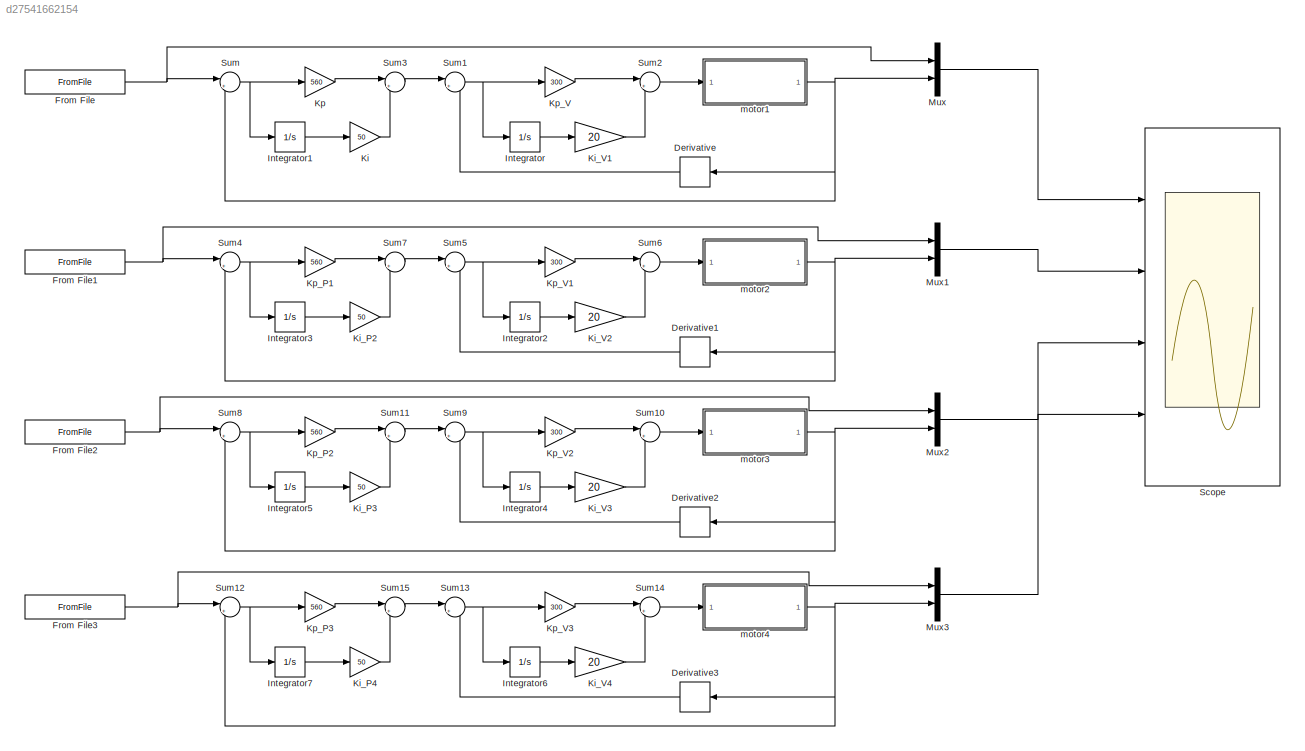
MODEL slx_d27541662154
KIND model
CONFIG AbsTol = auto
CONFIG EnableMultiTasking = off
CONFIG FixedStep = 0.02
CONFIG MaxStep = auto
CONFIG MinStep = auto
CONFIG RelTol = 1e-3
CONFIG SampleTimeConstraint = Unconstrained
CONFIG Solver = ode5
CONFIG SolverName = ode5
CONFIG StartTime = 0.0
CONFIG StopTime = 16.2433
BLOCK [Derivative] Derivative
BLOCK [Derivative] Derivative1
BLOCK [Derivative] Derivative2
BLOCK [Derivative] Derivative3
BLOCK [FromFile] From File
  FileName = theta1set.mat
BLOCK [FromFile] From File1
  FileName = theta2set.mat
BLOCK [FromFile] From File2
  FileName = d3set.mat
BLOCK [FromFile] From File3
  FileName = theta4set.mat
BLOCK [Integrator] Integrator
  Ports = [1, 1]
BLOCK [Integrator] Integrator1
  Ports = [1, 1]
BLOCK [Integrator] Integrator2
  Ports = [1, 1]
BLOCK [Integrator] Integrator3
  Ports = [1, 1]
BLOCK [Integrator] Integrator4
  Ports = [1, 1]
BLOCK [Integrator] Integrator5
  Ports = [1, 1]
BLOCK [Integrator] Integrator6
  Ports = [1, 1]
BLOCK [Integrator] Integrator7
  Ports = [1, 1]
BLOCK [Gain] Ki
  Gain = 50
  OutDataTypeStr = Inherit: Inherit via internal rule
  ParamDataTypeStr = Inherit: Inherit via internal rule
  SaturateOnIntegerOverflow = off
BLOCK [Gain] Ki_P2
  Gain = 50
  OutDataTypeStr = Inherit: Inherit via internal rule
  ParamDataTypeStr = Inherit: Inherit via internal rule
  SaturateOnIntegerOverflow = off
BLOCK [Gain] Ki_P3
  Gain = 50
  OutDataTypeStr = Inherit: Inherit via internal rule
  ParamDataTypeStr = Inherit: Inherit via internal rule
  SaturateOnIntegerOverflow = off
BLOCK [Gain] Ki_P4
  Gain = 50
  OutDataTypeStr = Inherit: Inherit via internal rule
  ParamDataTypeStr = Inherit: Inherit via internal rule
  SaturateOnIntegerOverflow = off
BLOCK [Gain] Ki_V1
  Gain = 20
  OutDataTypeStr = Inherit: Inherit via internal rule
  ParamDataTypeStr = Inherit: Inherit via internal rule
  SaturateOnIntegerOverflow = off
BLOCK [Gain] Ki_V2
  Gain = 20
  OutDataTypeStr = Inherit: Inherit via internal rule
  ParamDataTypeStr = Inherit: Inherit via internal rule
  SaturateOnIntegerOverflow = off
BLOCK [Gain] Ki_V3
  Gain = 20
  OutDataTypeStr = Inherit: Inherit via internal rule
  ParamDataTypeStr = Inherit: Inherit via internal rule
  SaturateOnIntegerOverflow = off
BLOCK [Gain] Ki_V4
  Gain = 20
  OutDataTypeStr = Inherit: Inherit via internal rule
  ParamDataTypeStr = Inherit: Inherit via internal rule
  SaturateOnIntegerOverflow = off
BLOCK [Gain] Kp
  Gain = 560
  OutDataTypeStr = Inherit: Inherit via internal rule
  ParamDataTypeStr = Inherit: Inherit via internal rule
  SaturateOnIntegerOverflow = off
BLOCK [Gain] Kp_P1
  Gain = 560
  OutDataTypeStr = Inherit: Inherit via internal rule
  ParamDataTypeStr = Inherit: Inherit via internal rule
  SaturateOnIntegerOverflow = off
BLOCK [Gain] Kp_P2
  Gain = 560
  OutDataTypeStr = Inherit: Inherit via internal rule
  ParamDataTypeStr = Inherit: Inherit via internal rule
  SaturateOnIntegerOverflow = off
BLOCK [Gain] Kp_P3
  Gain = 560
  OutDataTypeStr = Inherit: Inherit via internal rule
  ParamDataTypeStr = Inherit: Inherit via internal rule
  SaturateOnIntegerOverflow = off
BLOCK [Gain] Kp_V
  Gain = 300
  OutDataTypeStr = Inherit: Inherit via internal rule
  ParamDataTypeStr = Inherit: Inherit via internal rule
  SaturateOnIntegerOverflow = off
BLOCK [Gain] Kp_V1
  Gain = 300
  OutDataTypeStr = Inherit: Inherit via internal rule
  ParamDataTypeStr = Inherit: Inherit via internal rule
  SaturateOnIntegerOverflow = off
BLOCK [Gain] Kp_V2
  Gain = 300
  OutDataTypeStr = Inherit: Inherit via internal rule
  ParamDataTypeStr = Inherit: Inherit via internal rule
  SaturateOnIntegerOverflow = off
BLOCK [Gain] Kp_V3
  Gain = 300
  OutDataTypeStr = Inherit: Inherit via internal rule
  ParamDataTypeStr = Inherit: Inherit via internal rule
  SaturateOnIntegerOverflow = off
BLOCK [Mux] Mux
  DisplayOption = bar
  Inputs = 2
  Ports = [2, 1]
BLOCK [Mux] Mux1
  DisplayOption = bar
  Inputs = 2
  Ports = [2, 1]
BLOCK [Mux] Mux2
  DisplayOption = bar
  Inputs = 2
  Ports = [2, 1]
BLOCK [Mux] Mux3
  DisplayOption = bar
  Inputs = 2
  Ports = [2, 1]
BLOCK [Scope] Scope
  NumInputPorts = 4
  Ports = [4]
  ScopeSpecificationString = Simulink.scopes.TimeScopeBlockCfg('CurrentConfiguration', extmgr.ConfigurationSet(extmgr.Configuration('Core','General UI',true,'FigureColor',[1 1 1]),extmgr.Configuration('Core','Source UI',true),extmgr.Configuration('Sources','WiredSimulink',true,'DataLoggingVariableName','ScopeData1'),extmgr.Configuration('Visuals','Time Domain',true,'SerializedDisplays',{struct('MinYLimReal','-104.09392','MaxY...<+4483ch>
BLOCK [Sum] Sum
  IconShape = round
  InputSameDT = off
  Inputs = |+-
  OutDataTypeStr = Inherit: Inherit via internal rule
  Ports = [2, 1]
  SaturateOnIntegerOverflow = off
BLOCK [Sum] Sum1
  IconShape = round
  InputSameDT = off
  Inputs = |+-
  OutDataTypeStr = Inherit: Inherit via internal rule
  Ports = [2, 1]
  SaturateOnIntegerOverflow = off
BLOCK [Sum] Sum10
  IconShape = round
  InputSameDT = off
  Inputs = |++
  OutDataTypeStr = Inherit: Inherit via internal rule
  Ports = [2, 1]
  SaturateOnIntegerOverflow = off
BLOCK [Sum] Sum11
  IconShape = round
  InputSameDT = off
  Inputs = |++
  OutDataTypeStr = Inherit: Inherit via internal rule
  Ports = [2, 1]
  SaturateOnIntegerOverflow = off
BLOCK [Sum] Sum12
  IconShape = round
  InputSameDT = off
  Inputs = |+-
  OutDataTypeStr = Inherit: Inherit via internal rule
  Ports = [2, 1]
  SaturateOnIntegerOverflow = off
BLOCK [Sum] Sum13
  IconShape = round
  InputSameDT = off
  Inputs = |+-
  OutDataTypeStr = Inherit: Inherit via internal rule
  Ports = [2, 1]
  SaturateOnIntegerOverflow = off
BLOCK [Sum] Sum14
  IconShape = round
  InputSameDT = off
  Inputs = |++
  OutDataTypeStr = Inherit: Inherit via internal rule
  Ports = [2, 1]
  SaturateOnIntegerOverflow = off
BLOCK [Sum] Sum15
  IconShape = round
  InputSameDT = off
  Inputs = |++
  OutDataTypeStr = Inherit: Inherit via internal rule
  Ports = [2, 1]
  SaturateOnIntegerOverflow = off
BLOCK [Sum] Sum2
  IconShape = round
  InputSameDT = off
  Inputs = |++
  OutDataTypeStr = Inherit: Inherit via internal rule
  Ports = [2, 1]
  SaturateOnIntegerOverflow = off
BLOCK [Sum] Sum3
  IconShape = round
  InputSameDT = off
  Inputs = |++
  OutDataTypeStr = Inherit: Inherit via internal rule
  Ports = [2, 1]
  SaturateOnIntegerOverflow = off
BLOCK [Sum] Sum4
  IconShape = round
  InputSameDT = off
  Inputs = |+-
  OutDataTypeStr = Inherit: Inherit via internal rule
  Ports = [2, 1]
  SaturateOnIntegerOverflow = off
BLOCK [Sum] Sum5
  IconShape = round
  InputSameDT = off
  Inputs = |+-
  OutDataTypeStr = Inherit: Inherit via internal rule
  Ports = [2, 1]
  SaturateOnIntegerOverflow = off
BLOCK [Sum] Sum6
  IconShape = round
  InputSameDT = off
  Inputs = |++
  OutDataTypeStr = Inherit: Inherit via internal rule
  Ports = [2, 1]
  SaturateOnIntegerOverflow = off
BLOCK [Sum] Sum7
  IconShape = round
  InputSameDT = off
  Inputs = |++
  OutDataTypeStr = Inherit: Inherit via internal rule
  Ports = [2, 1]
  SaturateOnIntegerOverflow = off
BLOCK [Sum] Sum8
  IconShape = round
  InputSameDT = off
  Inputs = |+-
  OutDataTypeStr = Inherit: Inherit via internal rule
  Ports = [2, 1]
  SaturateOnIntegerOverflow = off
BLOCK [Sum] Sum9
  IconShape = round
  InputSameDT = off
  Inputs = |+-
  OutDataTypeStr = Inherit: Inherit via internal rule
  Ports = [2, 1]
  SaturateOnIntegerOverflow = off
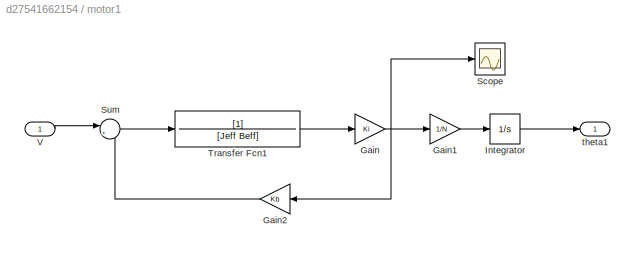
BLOCK [SubSystem] motor1
  Ports = [1, 1]
  RequestExecContextInheritance = off
  Variant = off
BLOCK [Gain] motor1/Gain
  Gain = Ki
  OutDataTypeStr = Inherit: Inherit via internal rule
  ParamDataTypeStr = Inherit: Inherit via internal rule
  SaturateOnIntegerOverflow = off
BLOCK [Gain] motor1/Gain1
  Gain = 1/N
  OutDataTypeStr = Inherit: Inherit via internal rule
  ParamDataTypeStr = Inherit: Inherit via internal rule
  SaturateOnIntegerOverflow = off
BLOCK [Gain] motor1/Gain2
  Gain = Kb
  OutDataTypeStr = Inherit: Inherit via internal rule
  ParamDataTypeStr = Inherit: Inherit via internal rule
  SaturateOnIntegerOverflow = off
BLOCK [Integrator] motor1/Integrator
  Ports = [1, 1]
BLOCK [Scope] motor1/Scope
  NumInputPorts = 1
  Ports = [1]
  ScopeSpecificationString = Simulink.scopes.TimeScopeBlockCfg('CurrentConfiguration', extmgr.ConfigurationSet(extmgr.Configuration('Core','General UI',true),extmgr.Configuration('Core','Source UI',true),extmgr.Configuration('Sources','WiredSimulink',true,'DataLoggingVariableName','ScopeData2'),extmgr.Configuration('Visuals','Time Domain',true,'SerializedDisplays',{struct('MinYLimReal','-142.39063','MaxYLimReal','35.76049','Y...<+1375ch>  <repeated x4 — deduplicated; at blocks: Scope>
BLOCK [Sum] motor1/Sum
  IconShape = round
  InputSameDT = off
  Inputs = |+-
  OutDataTypeStr = Inherit: Inherit via internal rule
  Ports = [2, 1]
  SaturateOnIntegerOverflow = off
BLOCK [TransferFcn] motor1/Transfer Fcn1
  Denominator = [Jeff Beff]
BLOCK [Inport] motor1/V
  IconDisplay = Port number
BLOCK [Outport] motor1/theta1
  IconDisplay = Port number
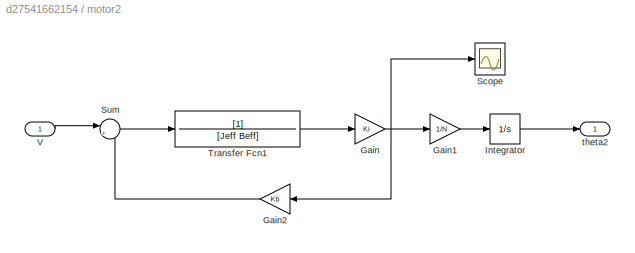
BLOCK [SubSystem] motor2
  Ports = [1, 1]
  RequestExecContextInheritance = off
  Variant = off
BLOCK [Gain] motor2/Gain
  Gain = Ki
  OutDataTypeStr = Inherit: Inherit via internal rule
  ParamDataTypeStr = Inherit: Inherit via internal rule
  SaturateOnIntegerOverflow = off
BLOCK [Gain] motor2/Gain1
  Gain = 1/N
  OutDataTypeStr = Inherit: Inherit via internal rule
  ParamDataTypeStr = Inherit: Inherit via internal rule
  SaturateOnIntegerOverflow = off
BLOCK [Gain] motor2/Gain2
  Gain = Kb
  OutDataTypeStr = Inherit: Inherit via internal rule
  ParamDataTypeStr = Inherit: Inherit via internal rule
  SaturateOnIntegerOverflow = off
BLOCK [Integrator] motor2/Integrator
  Ports = [1, 1]
BLOCK [Scope] motor2/Scope
  NumInputPorts = 1
  Ports = [1]
BLOCK [Sum] motor2/Sum
  IconShape = round
  InputSameDT = off
  Inputs = |+-
  OutDataTypeStr = Inherit: Inherit via internal rule
  Ports = [2, 1]
  SaturateOnIntegerOverflow = off
BLOCK [TransferFcn] motor2/Transfer Fcn1
  Denominator = [Jeff Beff]
BLOCK [Inport] motor2/V
  IconDisplay = Port number
BLOCK [Outport] motor2/theta2
  IconDisplay = Port number
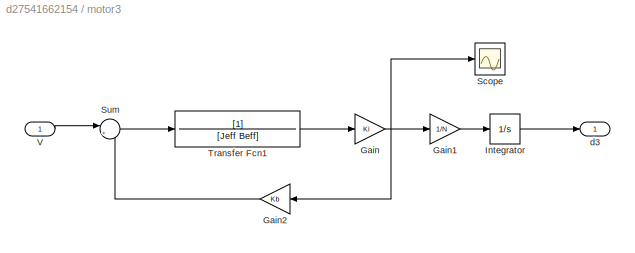
BLOCK [SubSystem] motor3
  Ports = [1, 1]
  RequestExecContextInheritance = off
  Variant = off
BLOCK [Gain] motor3/Gain
  Gain = Ki
  OutDataTypeStr = Inherit: Inherit via internal rule
  ParamDataTypeStr = Inherit: Inherit via internal rule
  SaturateOnIntegerOverflow = off
BLOCK [Gain] motor3/Gain1
  Gain = 1/N
  OutDataTypeStr = Inherit: Inherit via internal rule
  ParamDataTypeStr = Inherit: Inherit via internal rule
  SaturateOnIntegerOverflow = off
BLOCK [Gain] motor3/Gain2
  Gain = Kb
  OutDataTypeStr = Inherit: Inherit via internal rule
  ParamDataTypeStr = Inherit: Inherit via internal rule
  SaturateOnIntegerOverflow = off
BLOCK [Integrator] motor3/Integrator
  Ports = [1, 1]
BLOCK [Scope] motor3/Scope
  NumInputPorts = 1
  Ports = [1]
BLOCK [Sum] motor3/Sum
  IconShape = round
  InputSameDT = off
  Inputs = |+-
  OutDataTypeStr = Inherit: Inherit via internal rule
  Ports = [2, 1]
  SaturateOnIntegerOverflow = off
BLOCK [TransferFcn] motor3/Transfer Fcn1
  Denominator = [Jeff Beff]
BLOCK [Inport] motor3/V
  IconDisplay = Port number
BLOCK [Outport] motor3/d3
  IconDisplay = Port number
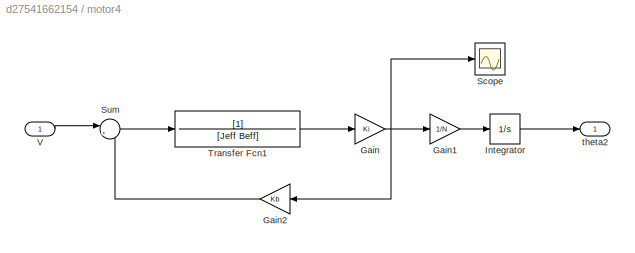
BLOCK [SubSystem] motor4
  Ports = [1, 1]
  RequestExecContextInheritance = off
  Variant = off
BLOCK [Gain] motor4/Gain
  Gain = Ki
  OutDataTypeStr = Inherit: Inherit via internal rule
  ParamDataTypeStr = Inherit: Inherit via internal rule
  SaturateOnIntegerOverflow = off
BLOCK [Gain] motor4/Gain1
  Gain = 1/N
  OutDataTypeStr = Inherit: Inherit via internal rule
  ParamDataTypeStr = Inherit: Inherit via internal rule
  SaturateOnIntegerOverflow = off
BLOCK [Gain] motor4/Gain2
  Gain = Kb
  OutDataTypeStr = Inherit: Inherit via internal rule
  ParamDataTypeStr = Inherit: Inherit via internal rule
  SaturateOnIntegerOverflow = off
BLOCK [Integrator] motor4/Integrator
  Ports = [1, 1]
BLOCK [Scope] motor4/Scope
  NumInputPorts = 1
  Ports = [1]
BLOCK [Sum] motor4/Sum
  IconShape = round
  InputSameDT = off
  Inputs = |+-
  OutDataTypeStr = Inherit: Inherit via internal rule
  Ports = [2, 1]
  SaturateOnIntegerOverflow = off
BLOCK [TransferFcn] motor4/Transfer Fcn1
  Denominator = [Jeff Beff]
BLOCK [Inport] motor4/V
  IconDisplay = Port number
BLOCK [Outport] motor4/theta2
  IconDisplay = Port number
LINE Derivative1:1 -> Sum5:2
LINE Derivative2:1 -> Sum9:2
LINE Derivative3:1 -> Sum13:2
LINE Derivative:1 -> Sum1:2
NET From File1:1 -> Mux1:1, Sum4:1
NET From File2:1 -> Mux2:1, Sum8:1
NET From File3:1 -> Mux3:1, Sum12:1
NET From File:1 -> Mux:1, Sum:1
LINE Integrator1:1 -> Ki:1
LINE Integrator2:1 -> Ki_V2:1
LINE Integrator3:1 -> Ki_P2:1
LINE Integrator4:1 -> Ki_V3:1
LINE Integrator5:1 -> Ki_P3:1
LINE Integrator6:1 -> Ki_V4:1
LINE Integrator7:1 -> Ki_P4:1
LINE Integrator:1 -> Ki_V1:1
LINE Ki:1 -> Sum3:2
LINE Ki_P2:1 -> Sum7:2
LINE Ki_P3:1 -> Sum11:2
LINE Ki_P4:1 -> Sum15:2
LINE Ki_V1:1 -> Sum2:2
LINE Ki_V2:1 -> Sum6:2
LINE Ki_V3:1 -> Sum10:2
LINE Ki_V4:1 -> Sum14:2
LINE Kp:1 -> Sum3:1
LINE Kp_P1:1 -> Sum7:1
LINE Kp_P2:1 -> Sum11:1
LINE Kp_P3:1 -> Sum15:1
LINE Kp_V1:1 -> Sum6:1
LINE Kp_V2:1 -> Sum10:1
LINE Kp_V3:1 -> Sum14:1
LINE Kp_V:1 -> Sum2:1
LINE Mux1:1 -> Scope:2
LINE Mux2:1 -> Scope:3
LINE Mux3:1 -> Scope:4
LINE Mux:1 -> Scope:1
LINE Sum10:1 -> motor3:1
LINE Sum11:1 -> Sum9:1
NET Sum12:1 -> Integrator7:1, Kp_P3:1
NET Sum13:1 -> Integrator6:1, Kp_V3:1
LINE Sum14:1 -> motor4:1
LINE Sum15:1 -> Sum13:1
NET Sum1:1 -> Integrator:1, Kp_V:1
LINE Sum2:1 -> motor1:1
LINE Sum3:1 -> Sum1:1
NET Sum4:1 -> Integrator3:1, Kp_P1:1
NET Sum5:1 -> Integrator2:1, Kp_V1:1
LINE Sum6:1 -> motor2:1
LINE Sum7:1 -> Sum5:1
NET Sum8:1 -> Integrator5:1, Kp_P2:1
NET Sum9:1 -> Integrator4:1, Kp_V2:1
NET Sum:1 -> Integrator1:1, Kp:1
LINE motor1/Gain1:1 -> motor1/Integrator:1
LINE motor1/Gain2:1 -> motor1/Sum:2
NET motor1/Gain:1 -> motor1/Gain1:1, motor1/Gain2:1, motor1/Scope:1
LINE motor1/Integrator:1 -> motor1/theta1:1
LINE motor1/Sum:1 -> motor1/Transfer Fcn1:1
LINE motor1/Transfer Fcn1:1 -> motor1/Gain:1
LINE motor1/V:1 -> motor1/Sum:1
NET motor1:1 -> Derivative:1, Mux:2, Sum:2
LINE motor2/Gain1:1 -> motor2/Integrator:1
LINE motor2/Gain2:1 -> motor2/Sum:2
NET motor2/Gain:1 -> motor2/Gain1:1, motor2/Gain2:1, motor2/Scope:1
LINE motor2/Integrator:1 -> motor2/theta2:1
LINE motor2/Sum:1 -> motor2/Transfer Fcn1:1
LINE motor2/Transfer Fcn1:1 -> motor2/Gain:1
LINE motor2/V:1 -> motor2/Sum:1
NET motor2:1 -> Derivative1:1, Mux1:2, Sum4:2
LINE motor3/Gain1:1 -> motor3/Integrator:1
LINE motor3/Gain2:1 -> motor3/Sum:2
NET motor3/Gain:1 -> motor3/Gain1:1, motor3/Gain2:1, motor3/Scope:1
LINE motor3/Integrator:1 -> motor3/d3:1
LINE motor3/Sum:1 -> motor3/Transfer Fcn1:1
LINE motor3/Transfer Fcn1:1 -> motor3/Gain:1
LINE motor3/V:1 -> motor3/Sum:1
NET motor3:1 -> Derivative2:1, Mux2:2, Sum8:2
LINE motor4/Gain1:1 -> motor4/Integrator:1
LINE motor4/Gain2:1 -> motor4/Sum:2
NET motor4/Gain:1 -> motor4/Gain1:1, motor4/Gain2:1, motor4/Scope:1
LINE motor4/Integrator:1 -> motor4/theta2:1
LINE motor4/Sum:1 -> motor4/Transfer Fcn1:1
LINE motor4/Transfer Fcn1:1 -> motor4/Gain:1
LINE motor4/V:1 -> motor4/Sum:1
NET motor4:1 -> Derivative3:1, Mux3:2, Sum12:2
note: NET lines group one-source signal fan-out (src -> all destinations, sorted); 1:1 wires keep LINE
